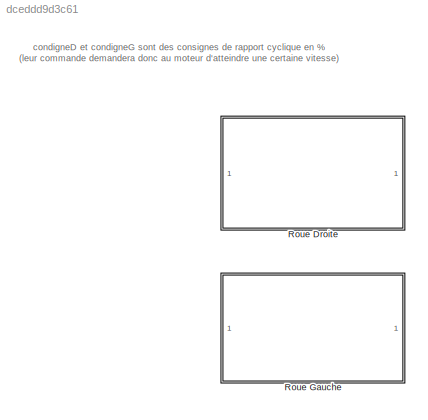
MODEL slx_dceddd9d3c61
KIND library
CONFIG AbsTol = auto
CONFIG FixedStep = auto
CONFIG MaxStep = auto
CONFIG MinStep = auto
CONFIG RelTol = 1e-3
CONFIG SampleTimeConstraint = Unconstrained
CONFIG Solver = ode45
CONFIG SolverMode = Auto
CONFIG SolverName = ode45
CONFIG StartTime = 0.0
CONFIG StopTime = 10.0
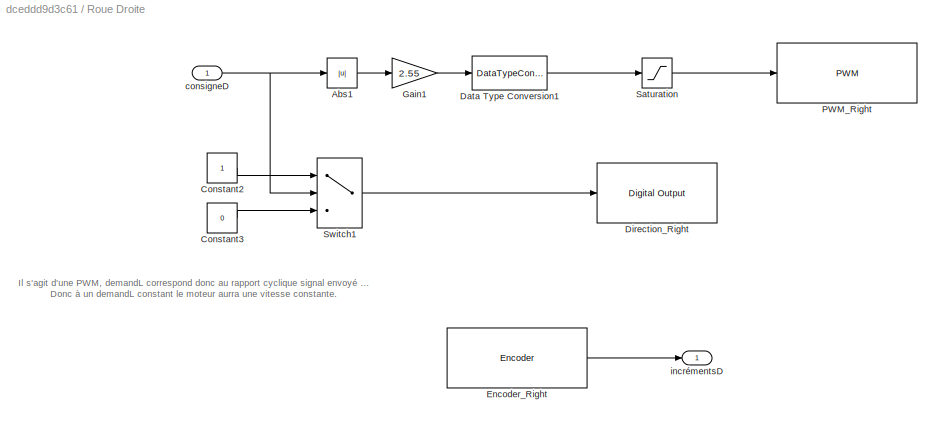
BLOCK [SubSystem] Roue Droite
  Ports = [1, 1]
  RequestExecContextInheritance = off
BLOCK [Abs] Roue Droite/Abs1
  SaturateOnIntegerOverflow = off
BLOCK [Constant] Roue Droite/Constant2
  OutDataTypeStr = uint8
BLOCK [Constant] Roue Droite/Constant3
  OutDataTypeStr = uint8
  Value = 0
BLOCK [DataTypeConversion] Roue Droite/Data Type Conversion1
  OutDataTypeStr = int32
  RndMeth = Floor
BLOCK [Reference] Roue Droite/Direction_Right  REF=arduinolib/Digital Output
  Ports = [1]
  SourceBlock = arduinolib/Digital Output
  SourceType = Arduino Digital Output
  blockPlatform = arduino
  pinNumber = 4
BLOCK [Reference] Roue Droite/Encoder_Right  REF=arduinodue_drivers/Encoder  (lib defined in slx_af165bb4e225)
  Ports = [0, 1]
  SourceBlock = arduinodue_drivers/Encoder
  pinA = 16
  pinB = 17
BLOCK [Gain] Roue Droite/Gain1
  Gain = 2.55
  OutDataTypeStr = Inherit: Inherit via internal rule
  ParamDataTypeStr = Inherit: Inherit via internal rule
  SaturateOnIntegerOverflow = off
BLOCK [Reference] Roue Droite/PWM_Right  REF=arduinodue_drivers/PWM  (lib defined in slx_af165bb4e225)
  Ports = [1]
  SourceBlock = arduinodue_drivers/PWM
  SourceType = Arduino PWM
  pinNumber = 5
BLOCK [Saturate] Roue Droite/Saturation
  InputPortMap = u0
  LowerLimit = 0
  Ports = [1, 1]
  UpperLimit = 255
BLOCK [Switch] Roue Droite/Switch1
  Criteria = u2 > Threshold
  InputSameDT = off
  SaturateOnIntegerOverflow = off
BLOCK [Inport] Roue Droite/consigneD
  IconDisplay = Port number
  SampleTime = 0
BLOCK [Outport] Roue Droite/incrémentsD
  IconDisplay = Port number
  OutDataTypeStr = int32
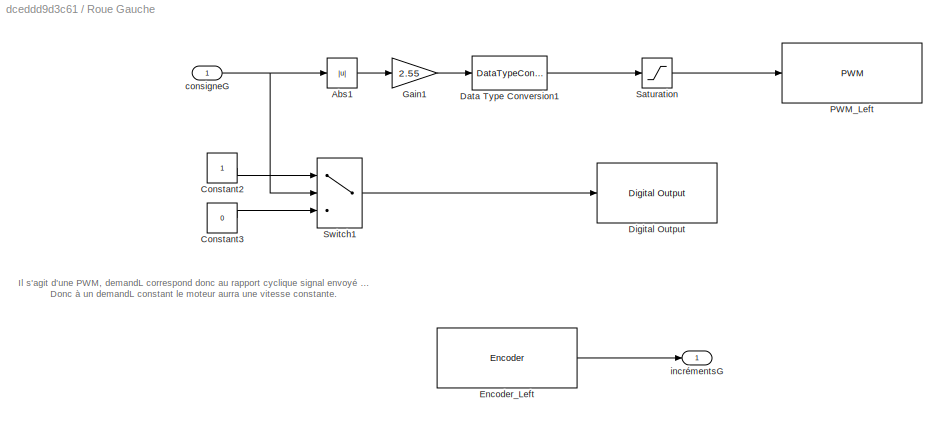
BLOCK [SubSystem] Roue Gauche
  Ports = [1, 1]
  RequestExecContextInheritance = off
BLOCK [Abs] Roue Gauche/Abs1
  SaturateOnIntegerOverflow = off
BLOCK [Constant] Roue Gauche/Constant2
  OutDataTypeStr = uint8
BLOCK [Constant] Roue Gauche/Constant3
  OutDataTypeStr = uint8
  Value = 0
BLOCK [DataTypeConversion] Roue Gauche/Data Type Conversion1
  OutDataTypeStr = int32
  RndMeth = Floor
BLOCK [Reference] Roue Gauche/Digital Output  REF=arduinolib/Digital Output
  Ports = [1]
  SourceBlock = arduinolib/Digital Output
  SourceType = Arduino Digital Output
  blockPlatform = arduino
  pinNumber = 7
BLOCK [Reference] Roue Gauche/Encoder_Left  REF=arduinodue_drivers/Encoder  (lib defined in slx_af165bb4e225)
  Ports = [0, 1]
  SourceBlock = arduinodue_drivers/Encoder
  pinA = 19
  pinB = 18
BLOCK [Gain] Roue Gauche/Gain1
  Gain = 2.55
  OutDataTypeStr = Inherit: Inherit via internal rule
  ParamDataTypeStr = Inherit: Inherit via internal rule
  SaturateOnIntegerOverflow = off
BLOCK [Reference] Roue Gauche/PWM_Left  REF=arduinodue_drivers/PWM  (lib defined in slx_af165bb4e225)
  Ports = [1]
  SourceBlock = arduinodue_drivers/PWM
  SourceType = Arduino PWM
  pinNumber = 6
BLOCK [Saturate] Roue Gauche/Saturation
  InputPortMap = u0
  LowerLimit = 0
  Ports = [1, 1]
  UpperLimit = 255
BLOCK [Switch] Roue Gauche/Switch1
  Criteria = u2 > Threshold
  InputSameDT = off
  SaturateOnIntegerOverflow = off
BLOCK [Inport] Roue Gauche/consigneG
  IconDisplay = Port number
  SampleTime = 0
BLOCK [Outport] Roue Gauche/incrémentsG
  IconDisplay = Port number
  OutDataTypeStr = int32
ANNOTATION (root): condigneD et condigneG sont des consignes de rapport cyclique en % (leur commande demandera donc au moteur d'atteindre une certaine vitesse)
ANNOTATION Roue Droite: Il s'agit d'une PWM, demandL correspond donc au rapport cyclique signal envoyé au moteur. Donc à un demandL constant le moteur aurra une vitesse constante.
ANNOTATION Roue Gauche: Il s'agit d'une PWM, demandL correspond donc au rapport cyclique signal envoyé au moteur. Donc à un demandL constant le moteur aurra une vitesse constante.
LINE Roue Droite/Abs1:1 -> Roue Droite/Gain1:1
LINE Roue Droite/Constant2:1 -> Roue Droite/Switch1:1
LINE Roue Droite/Constant3:1 -> Roue Droite/Switch1:3
LINE Roue Droite/Data Type Conversion1:1 -> Roue Droite/Saturation:1
LINE Roue Droite/Encoder_Right:1 -> Roue Droite/incrémentsD:1
LINE Roue Droite/Gain1:1 -> Roue Droite/Data Type Conversion1:1
LINE Roue Droite/Saturation:1 -> Roue Droite/PWM_Right:1
LINE Roue Droite/Switch1:1 -> Roue Droite/Direction_Right:1
NET Roue Droite/consigneD:1 -> Roue Droite/Abs1:1, Roue Droite/Switch1:2
LINE Roue Gauche/Abs1:1 -> Roue Gauche/Gain1:1
LINE Roue Gauche/Constant2:1 -> Roue Gauche/Switch1:1
LINE Roue Gauche/Constant3:1 -> Roue Gauche/Switch1:3
LINE Roue Gauche/Data Type Conversion1:1 -> Roue Gauche/Saturation:1
LINE Roue Gauche/Encoder_Left:1 -> Roue Gauche/incrémentsG:1
LINE Roue Gauche/Gain1:1 -> Roue Gauche/Data Type Conversion1:1
LINE Roue Gauche/Saturation:1 -> Roue Gauche/PWM_Left:1
LINE Roue Gauche/Switch1:1 -> Roue Gauche/Digital Output:1
NET Roue Gauche/consigneG:1 -> Roue Gauche/Abs1:1, Roue Gauche/Switch1:2
note: NET lines group one-source signal fan-out (src -> all destinations, sorted); 1:1 wires keep LINE
